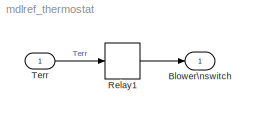
MODEL mdlref_thermostat
KIND model
BLOCK [Outport] Blower\nswitch
  BusOutputAsStruct = off
  IconDisplay = Port number
  InitialOutput = 0
BLOCK [Relay] Relay1
  OffSwitchValue = -5*(5/9)
  OnSwitchValue = 5*(5/9)
BLOCK [Inport] Terr
  DataType = double
  IconDisplay = Port number
  LatchInput = off
  Port = 1
  PortDimensions = 1
  SampleTime = 0
  SamplingMode = Sample based
  SignalType = real
LINE Relay1:1 -> Blower\nswitch:1
LINE Terr:1 -> Relay1:1
